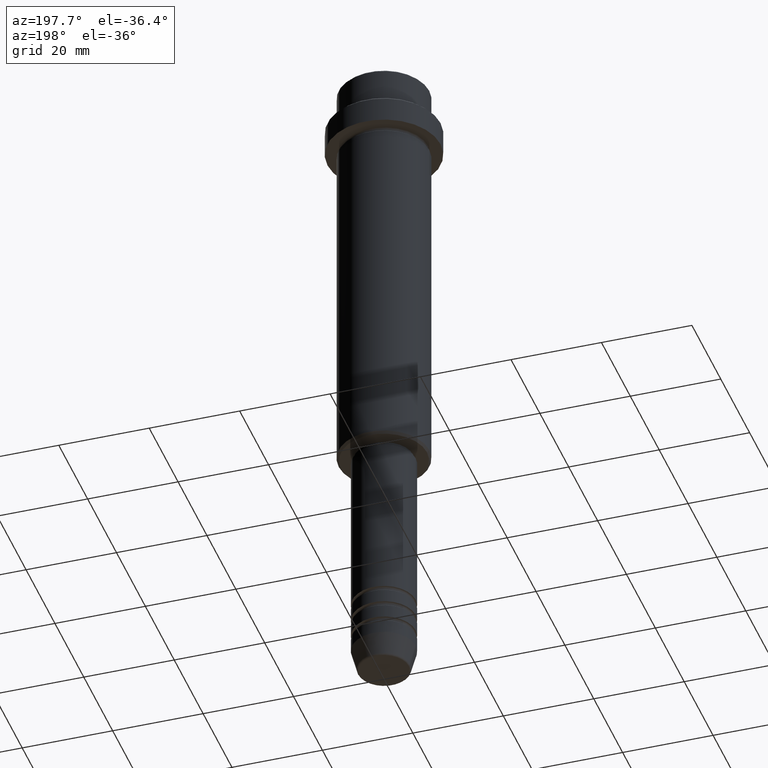
[diagram: clean part render]
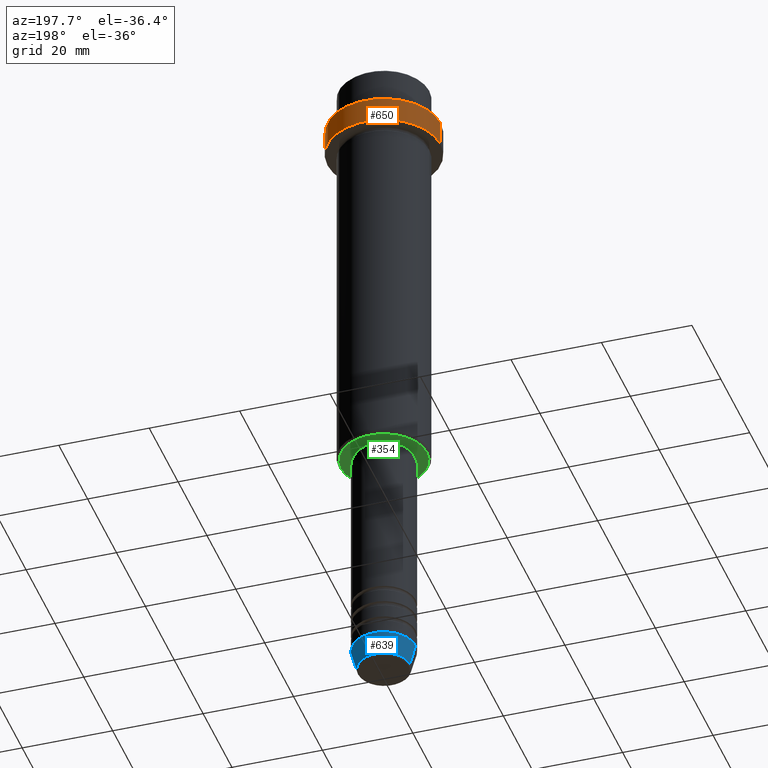
[diagram: same view with three faces highlighted in distinct colors, each labeled with its STEP entity id]
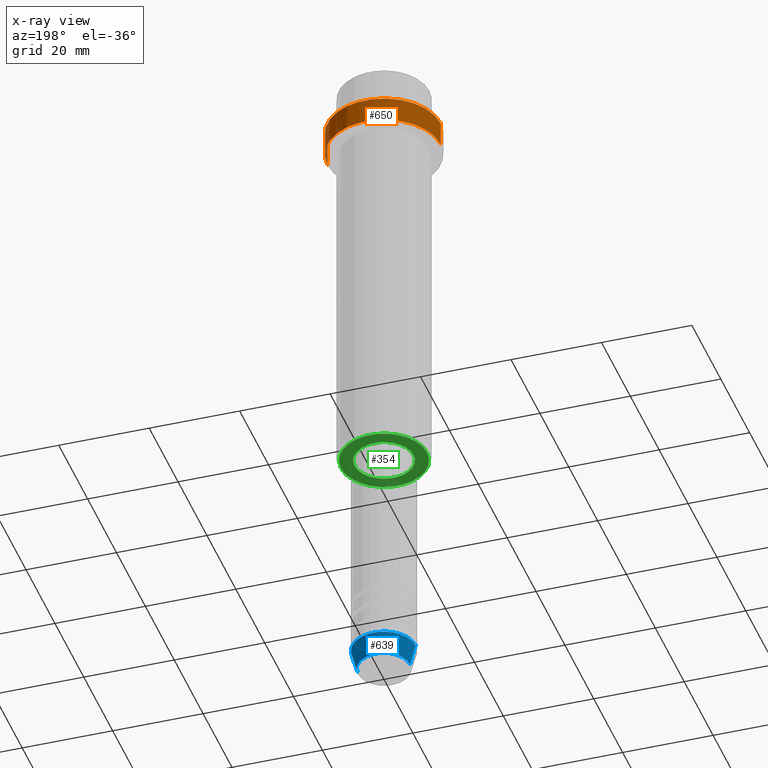
[diagram: x-ray of the same camera — body ghosted, the three highlighted faces saturated]
A machine part, auxiliary view with three faces highlighted in distinct colors.
The next image is the same camera in x-ray (body ghosted, the three faces saturated) — at least one of them is partly hidden behind the body in this view.
Their STEP definitions:

[orange] entity #650 — the highlighted cylindrical surface (partial cylindrical patch) has radius 12.5 mm, axis along (-0, -0, 1).
#117 = VERTEX_POINT ( 'NONE', #196 ) ;
#136 = CYLINDRICAL_SURFACE ( 'NONE', #180, 12.50000000000000000 ) ;
#142 = CARTESIAN_POINT ( 'NONE',  ( -12.50000000000000000, 1.530808498934191521E-15, -15.00000000000000178 ) ) ;
#180 = AXIS2_PLACEMENT_3D ( 'NONE', #468, #1326, #572 ) ;
#188 = VERTEX_POINT ( 'NONE', #742 ) ;
#196 = CARTESIAN_POINT ( 'NONE',  ( -12.50000000000000000, 1.530808498934191521E-15, -9.499999999999952038 ) ) ;
#270 = EDGE_CURVE ( 'NONE', #117, #810, #883, .T. ) ;
#275 = CARTESIAN_POINT ( 'NONE',  ( 12.50000000000000000, 0.000000000000000000, -9.499999999999952038 ) ) ;
#351 = LINE ( 'NONE', #782, #1397 ) ;
#468 = CARTESIAN_POINT ( 'NONE',  ( 0.000000000000000000, 0.000000000000000000, 0.000000000000000000 ) ) ;
#493 = ORIENTED_EDGE ( 'NONE', *, *, #270, .T. ) ;
#506 = DIRECTION ( 'NONE',  ( 1.000000000000000000, 0.000000000000000000, 0.000000000000000000 ) ) ;
#541 = DIRECTION ( 'NONE',  ( 1.000000000000000000, 0.000000000000000000, 0.000000000000000000 ) ) ;
#572 = DIRECTION ( 'NONE',  ( 1.000000000000000000, 0.000000000000000000, 0.000000000000000000 ) ) ;
#596 = CARTESIAN_POINT ( 'NONE',  ( 0.000000000000000000, 0.000000000000000000, -15.00000000000000178 ) ) ;
#608 = DIRECTION ( 'NONE',  ( -0.000000000000000000, -0.000000000000000000, 1.000000000000000000 ) ) ;
#650 = ADVANCED_FACE ( 'NONE', ( #664 ), #136, .T. ) ;
#657 = VECTOR ( 'NONE', #1015, 1000.000000000000000 ) ;
#664 = FACE_OUTER_BOUND ( 'NONE', #1411, .T. ) ;
#720 = ORIENTED_EDGE ( 'NONE', *, *, #818, .T. ) ;
#724 = AXIS2_PLACEMENT_3D ( 'NONE', #778, #1113, #541 ) ;
#742 = CARTESIAN_POINT ( 'NONE',  ( 12.50000000000000000, 0.000000000000000000, -15.00000000000000178 ) ) ;
#761 = EDGE_CURVE ( 'NONE', #780, #117, #351, .T. ) ;
#778 = CARTESIAN_POINT ( 'NONE',  ( 0.000000000000000000, 0.000000000000000000, -9.499999999999952038 ) ) ;
#780 = VERTEX_POINT ( 'NONE', #142 ) ;
#782 = CARTESIAN_POINT ( 'NONE',  ( -12.50000000000000000, 1.530808498934191521E-15, 0.000000000000000000 ) ) ;
#800 = LINE ( 'NONE', #1144, #657 ) ;
#810 = VERTEX_POINT ( 'NONE', #275 ) ;
#818 = EDGE_CURVE ( 'NONE', #188, #780, #884, .T. ) ;
#883 = CIRCLE ( 'NONE', #724, 12.50000000000000000 ) ;
#884 = CIRCLE ( 'NONE', #1122, 12.50000000000000000 ) ;
#1015 = DIRECTION ( 'NONE',  ( -0.000000000000000000, -0.000000000000000000, 1.000000000000000000 ) ) ;
#1113 = DIRECTION ( 'NONE',  ( 0.000000000000000000, 0.000000000000000000, -1.000000000000000000 ) ) ;
#1122 = AXIS2_PLACEMENT_3D ( 'NONE', #596, #608, #506 ) ;
#1144 = CARTESIAN_POINT ( 'NONE',  ( 12.50000000000000000, 0.000000000000000000, 0.000000000000000000 ) ) ;
#1203 = ORIENTED_EDGE ( 'NONE', *, *, #761, .T. ) ;
#1259 = EDGE_CURVE ( 'NONE', #188, #810, #800, .T. ) ;
#1326 = DIRECTION ( 'NONE',  ( -0.000000000000000000, -0.000000000000000000, 1.000000000000000000 ) ) ;
#1371 = ORIENTED_EDGE ( 'NONE', *, *, #1259, .F. ) ;
#1384 = DIRECTION ( 'NONE',  ( -0.000000000000000000, -0.000000000000000000, 1.000000000000000000 ) ) ;
#1397 = VECTOR ( 'NONE', #1384, 1000.000000000000000 ) ;
#1411 = EDGE_LOOP ( 'NONE', ( #720, #1203, #493, #1371 ) ) ;

[blue] entity #639 — the highlighted conical surface has half-angle 15 deg.
#17 = DIRECTION ( 'NONE',  ( -0.000000000000000000, -0.000000000000000000, 1.000000000000000000 ) ) ;
#44 = CIRCLE ( 'NONE', #915, 5.759553456999437770 ) ;
#173 = CARTESIAN_POINT ( 'NONE',  ( -7.000000000000000000, 8.572527594031473190E-16, -145.0000000000000000 ) ) ;
#244 = DIRECTION ( 'NONE',  ( 1.000000000000000000, 0.000000000000000000, 0.000000000000000000 ) ) ;
#321 = CARTESIAN_POINT ( 'NONE',  ( -7.000000000000000000, 8.572527594031473190E-16, -145.0000000000000000 ) ) ;
#353 = EDGE_LOOP ( 'NONE', ( #804, #1114, #867, #1342 ) ) ;
#365 = AXIS2_PLACEMENT_3D ( 'NONE', #1318, #644, #758 ) ;
#366 = CARTESIAN_POINT ( 'NONE',  ( 0.000000000000000000, 0.000000000000000000, -145.0000000000000000 ) ) ;
#396 = VERTEX_POINT ( 'NONE', #321 ) ;
#407 = VECTOR ( 'NONE', #734, 1000.000000000000114 ) ;
#460 = CARTESIAN_POINT ( 'NONE',  ( 0.000000000000000000, 0.000000000000000000, -149.6294095225512137 ) ) ;
#476 = AXIS2_PLACEMENT_3D ( 'NONE', #366, #1119, #244 ) ;
#480 = VECTOR ( 'NONE', #914, 1000.000000000000114 ) ;
#519 = CARTESIAN_POINT ( 'NONE',  ( 5.759553456999437770, 0.000000000000000000, -149.6294095225512137 ) ) ;
#556 = CARTESIAN_POINT ( 'NONE',  ( 7.000000000000000000, 0.000000000000000000, -145.0000000000000000 ) ) ;
#597 = EDGE_CURVE ( 'NONE', #985, #1175, #837, .T. ) ;
#639 = ADVANCED_FACE ( 'NONE', ( #997 ), #1044, .T. ) ;
#644 = DIRECTION ( 'NONE',  ( -0.000000000000000000, -0.000000000000000000, 1.000000000000000000 ) ) ;
#669 = DIRECTION ( 'NONE',  ( 1.000000000000000000, 0.000000000000000000, 0.000000000000000000 ) ) ;
#690 = EDGE_CURVE ( 'NONE', #1175, #396, #1024, .T. ) ;
#734 = DIRECTION ( 'NONE',  ( 0.2588190451025227379, 0.000000000000000000, 0.9659258262890676461 ) ) ;
#758 = DIRECTION ( 'NONE',  ( 1.000000000000000000, 0.000000000000000000, 0.000000000000000000 ) ) ;
#804 = ORIENTED_EDGE ( 'NONE', *, *, #1157, .T. ) ;
#837 = LINE ( 'NONE', #1075, #407 ) ;
#867 = ORIENTED_EDGE ( 'NONE', *, *, #690, .F. ) ;
#914 = DIRECTION ( 'NONE',  ( -0.2588190451025227379, 3.169619151431788361E-17, 0.9659258262890676461 ) ) ;
#915 = AXIS2_PLACEMENT_3D ( 'NONE', #460, #17, #669 ) ;
#929 = VERTEX_POINT ( 'NONE', #1278 ) ;
#985 = VERTEX_POINT ( 'NONE', #519 ) ;
#997 = FACE_OUTER_BOUND ( 'NONE', #353, .T. ) ;
#1024 = CIRCLE ( 'NONE', #365, 7.000000000000000000 ) ;
#1044 = CONICAL_SURFACE ( 'NONE', #476, 7.000000000000000000, 0.2617993877991514617 ) ;
#1075 = CARTESIAN_POINT ( 'NONE',  ( 7.000000000000000000, 0.000000000000000000, -145.0000000000000000 ) ) ;
#1114 = ORIENTED_EDGE ( 'NONE', *, *, #1211, .T. ) ;
#1119 = DIRECTION ( 'NONE',  ( -0.000000000000000000, -0.000000000000000000, 1.000000000000000000 ) ) ;
#1126 = LINE ( 'NONE', #173, #480 ) ;
#1157 = EDGE_CURVE ( 'NONE', #985, #929, #44, .T. ) ;
#1175 = VERTEX_POINT ( 'NONE', #556 ) ;
#1211 = EDGE_CURVE ( 'NONE', #929, #396, #1126, .T. ) ;
#1278 = CARTESIAN_POINT ( 'NONE',  ( -5.759553456999437770, 7.812973149831953745E-16, -149.6294095225512137 ) ) ;
#1318 = CARTESIAN_POINT ( 'NONE',  ( 0.000000000000000000, 0.000000000000000000, -145.0000000000000000 ) ) ;
#1342 = ORIENTED_EDGE ( 'NONE', *, *, #597, .F. ) ;

[green] entity #354 — the highlighted planar face has unit normal (0, 0, -1).
#28 = AXIS2_PLACEMENT_3D ( 'NONE', #121, #1123, #347 ) ;
#60 = CARTESIAN_POINT ( 'NONE',  ( 0.000000000000000000, 0.000000000000000000, -95.00000000000000000 ) ) ;
#96 = CARTESIAN_POINT ( 'NONE',  ( 0.000000000000000000, 10.00000000000000000, -95.00000000000000000 ) ) ;
#121 = CARTESIAN_POINT ( 'NONE',  ( 0.000000000000000000, 0.000000000000000000, -95.00000000000000000 ) ) ;
#176 = DIRECTION ( 'NONE',  ( -1.000000000000000000, 0.000000000000000000, -0.000000000000000000 ) ) ;
#182 = CIRCLE ( 'NONE', #982, 6.499999999999994671 ) ;
#203 = FACE_BOUND ( 'NONE', #439, .T. ) ;
#233 = CARTESIAN_POINT ( 'NONE',  ( 0.000000000000000000, 0.000000000000000000, -95.00000000000000000 ) ) ;
#261 = EDGE_CURVE ( 'NONE', #1063, #569, #704, .T. ) ;
#277 = PLANE ( 'NONE',  #448 ) ;
#307 = DIRECTION ( 'NONE',  ( 1.000000000000000000, 0.000000000000000000, 0.000000000000000000 ) ) ;
#342 = CARTESIAN_POINT ( 'NONE',  ( -9.499999999999994671, 1.194030629168669075E-15, -95.00000000000000000 ) ) ;
#347 = DIRECTION ( 'NONE',  ( -1.000000000000000000, 0.000000000000000000, 0.000000000000000000 ) ) ;
#354 = ADVANCED_FACE ( 'NONE', ( #948, #203 ), #277, .T. ) ;
#393 = DIRECTION ( 'NONE',  ( 0.000000000000000000, 0.000000000000000000, -1.000000000000000000 ) ) ;
#420 = DIRECTION ( 'NONE',  ( -0.000000000000000000, -0.000000000000000000, 1.000000000000000000 ) ) ;
#421 = CARTESIAN_POINT ( 'NONE',  ( 9.499999999999994671, 0.000000000000000000, -95.00000000000000000 ) ) ;
#439 = EDGE_LOOP ( 'NONE', ( #1110, #1159 ) ) ;
#448 = AXIS2_PLACEMENT_3D ( 'NONE', #96, #1402, #176 ) ;
#452 = DIRECTION ( 'NONE',  ( -0.000000000000000000, -0.000000000000000000, 1.000000000000000000 ) ) ;
#499 = AXIS2_PLACEMENT_3D ( 'NONE', #1052, #420, #307 ) ;
#569 = VERTEX_POINT ( 'NONE', #421 ) ;
#704 = CIRCLE ( 'NONE', #28, 9.499999999999994671 ) ;
#714 = EDGE_LOOP ( 'NONE', ( #1367, #1004 ) ) ;
#759 = VERTEX_POINT ( 'NONE', #1412 ) ;
#948 = FACE_OUTER_BOUND ( 'NONE', #714, .T. ) ;
#967 = EDGE_CURVE ( 'NONE', #759, #1276, #1047, .T. ) ;
#982 = AXIS2_PLACEMENT_3D ( 'NONE', #233, #452, #1333 ) ;
#1004 = ORIENTED_EDGE ( 'NONE', *, *, #261, .T. ) ;
#1047 = CIRCLE ( 'NONE', #499, 6.499999999999994671 ) ;
#1052 = CARTESIAN_POINT ( 'NONE',  ( 0.000000000000000000, 0.000000000000000000, -95.00000000000000000 ) ) ;
#1063 = VERTEX_POINT ( 'NONE', #342 ) ;
#1110 = ORIENTED_EDGE ( 'NONE', *, *, #967, .T. ) ;
#1123 = DIRECTION ( 'NONE',  ( 0.000000000000000000, 0.000000000000000000, -1.000000000000000000 ) ) ;
#1148 = EDGE_CURVE ( 'NONE', #1276, #759, #182, .T. ) ;
#1159 = ORIENTED_EDGE ( 'NONE', *, *, #1148, .T. ) ;
#1208 = CIRCLE ( 'NONE', #1394, 9.499999999999994671 ) ;
#1225 = EDGE_CURVE ( 'NONE', #569, #1063, #1208, .T. ) ;
#1242 = CARTESIAN_POINT ( 'NONE',  ( -6.499999999999994671, 7.960204194457788574E-16, -95.00000000000000000 ) ) ;
#1276 = VERTEX_POINT ( 'NONE', #1242 ) ;
#1333 = DIRECTION ( 'NONE',  ( 1.000000000000000000, 0.000000000000000000, 0.000000000000000000 ) ) ;
#1367 = ORIENTED_EDGE ( 'NONE', *, *, #1225, .T. ) ;
#1376 = DIRECTION ( 'NONE',  ( -1.000000000000000000, 0.000000000000000000, 0.000000000000000000 ) ) ;
#1394 = AXIS2_PLACEMENT_3D ( 'NONE', #60, #393, #1376 ) ;
#1402 = DIRECTION ( 'NONE',  ( 0.000000000000000000, 0.000000000000000000, -1.000000000000000000 ) ) ;
#1412 = CARTESIAN_POINT ( 'NONE',  ( 6.499999999999994671, 0.000000000000000000, -95.00000000000000000 ) ) ;